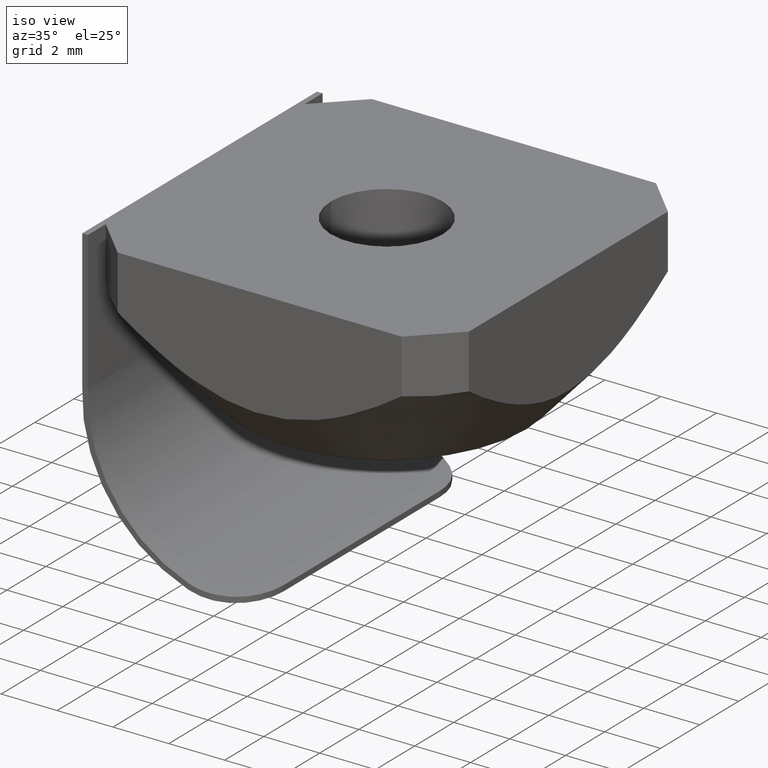
[diagram: clean part render]
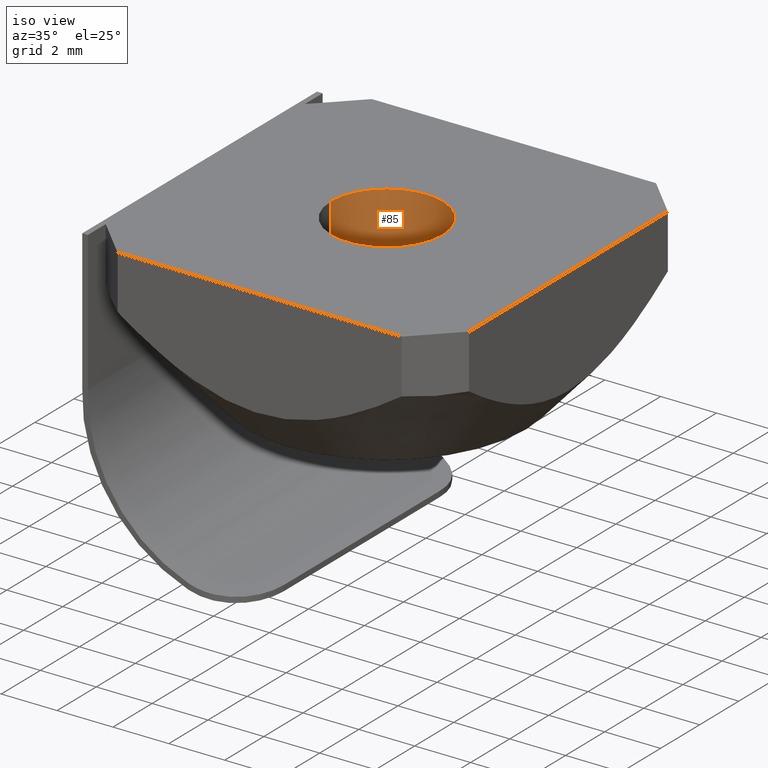
[diagram: same view with one face highlighted and labeled with its STEP entity id]
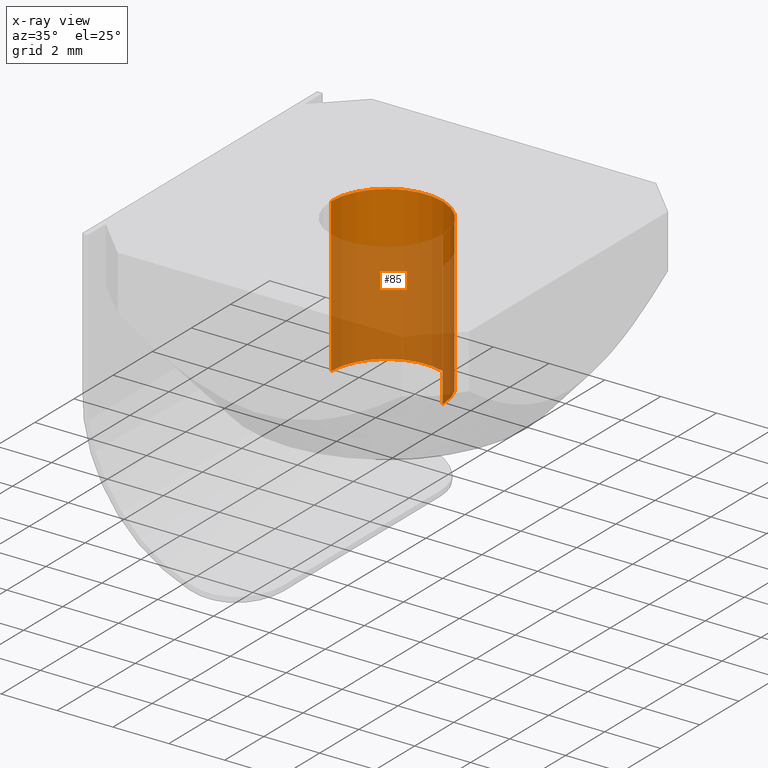
[diagram: x-ray of the same camera — body ghosted, the highlighted face saturated]
A machine part, iso view. The second image highlights one B-rep face of the part: STEP entity #85.
The next image is the same camera in x-ray: the body ghosted, the highlighted face saturated — about 71% of this face is hidden behind the body in this view.
In plain terms, the highlighted cylindrical surface (partial cylindrical patch) has radius 2 mm, axis along (0, 0, -1).
Its self-contained STEP definition (entity closure, byte-faithful):
#6 = AXIS2_PLACEMENT_3D ( 'NONE', #99, #86, #227 ) ;
#11 = LINE ( 'NONE', #197, #290 ) ;
#45 = CARTESIAN_POINT ( 'NONE',  ( 2.000000000000000000, 2.449293598294706414E-16, -5.500000000000000000 ) ) ;
#48 = DIRECTION ( 'NONE',  ( -0.0000000000000000000, -0.0000000000000000000, 1.000000000000000000 ) ) ;
#85 = ADVANCED_FACE ( 'NONE', ( #200 ), #151, .F. ) ;
#86 = DIRECTION ( 'NONE',  ( 0.0000000000000000000, 0.0000000000000000000, -1.000000000000000000 ) ) ;
#99 = CARTESIAN_POINT ( 'NONE',  ( 0.0000000000000000000, 0.0000000000000000000, 0.0000000000000000000 ) ) ;
#151 = CYLINDRICAL_SURFACE ( 'NONE', #458, 2.000000000000000000 ) ;
#195 = DIRECTION ( 'NONE',  ( 0.0000000000000000000, 0.0000000000000000000, -1.000000000000000000 ) ) ;
#197 = CARTESIAN_POINT ( 'NONE',  ( -2.000000000000000000, 0.0000000000000000000, 0.0000000000000000000 ) ) ;
#200 = FACE_OUTER_BOUND ( 'NONE', #849, .T. ) ;
#224 = CARTESIAN_POINT ( 'NONE',  ( -2.000000000000000000, 0.0000000000000000000, 0.0000000000000000000 ) ) ;
#227 = DIRECTION ( 'NONE',  ( -1.000000000000000000, 0.0000000000000000000, 0.0000000000000000000 ) ) ;
#263 = DIRECTION ( 'NONE',  ( -1.000000000000000000, 0.0000000000000000000, 0.0000000000000000000 ) ) ;
#271 = AXIS2_PLACEMENT_3D ( 'NONE', #591, #48, #520 ) ;
#272 = EDGE_CURVE ( 'NONE', #344, #366, #858, .T. ) ;
#290 = VECTOR ( 'NONE', #195, 1000.000000000000000 ) ;
#344 = VERTEX_POINT ( 'NONE', #224 ) ;
#362 = CARTESIAN_POINT ( 'NONE',  ( 2.000000000000000000, 2.449293598294706414E-16, 0.0000000000000000000 ) ) ;
#363 = VECTOR ( 'NONE', #434, 1000.000000000000000 ) ;
#366 = VERTEX_POINT ( 'NONE', #362 ) ;
#376 = CARTESIAN_POINT ( 'NONE',  ( 2.000000000000000000, 2.449293598294706414E-16, 0.0000000000000000000 ) ) ;
#387 = EDGE_CURVE ( 'NONE', #366, #560, #575, .T. ) ;
#394 = VERTEX_POINT ( 'NONE', #710 ) ;
#434 = DIRECTION ( 'NONE',  ( 0.0000000000000000000, 0.0000000000000000000, -1.000000000000000000 ) ) ;
#458 = AXIS2_PLACEMENT_3D ( 'NONE', #806, #876, #263 ) ;
#483 = ORIENTED_EDGE ( 'NONE', *, *, #527, .F. ) ;
#520 = DIRECTION ( 'NONE',  ( -1.000000000000000000, 0.0000000000000000000, 0.0000000000000000000 ) ) ;
#527 = EDGE_CURVE ( 'NONE', #560, #394, #770, .T. ) ;
#560 = VERTEX_POINT ( 'NONE', #45 ) ;
#575 = LINE ( 'NONE', #376, #363 ) ;
#591 = CARTESIAN_POINT ( 'NONE',  ( 0.0000000000000000000, 0.0000000000000000000, -5.500000000000000000 ) ) ;
#694 = ORIENTED_EDGE ( 'NONE', *, *, #272, .F. ) ;
#707 = EDGE_CURVE ( 'NONE', #344, #394, #11, .T. ) ;
#710 = CARTESIAN_POINT ( 'NONE',  ( -2.000000000000000000, 0.0000000000000000000, -5.500000000000000000 ) ) ;
#770 = CIRCLE ( 'NONE', #271, 2.000000000000000000 ) ;
#773 = ORIENTED_EDGE ( 'NONE', *, *, #387, .F. ) ;
#806 = CARTESIAN_POINT ( 'NONE',  ( 0.0000000000000000000, 0.0000000000000000000, 0.0000000000000000000 ) ) ;
#814 = ORIENTED_EDGE ( 'NONE', *, *, #707, .T. ) ;
#849 = EDGE_LOOP ( 'NONE', ( #773, #694, #814, #483 ) ) ;
#858 = CIRCLE ( 'NONE', #6, 2.000000000000000000 ) ;
#876 = DIRECTION ( 'NONE',  ( 0.0000000000000000000, 0.0000000000000000000, -1.000000000000000000 ) ) ;